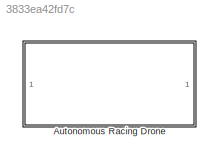
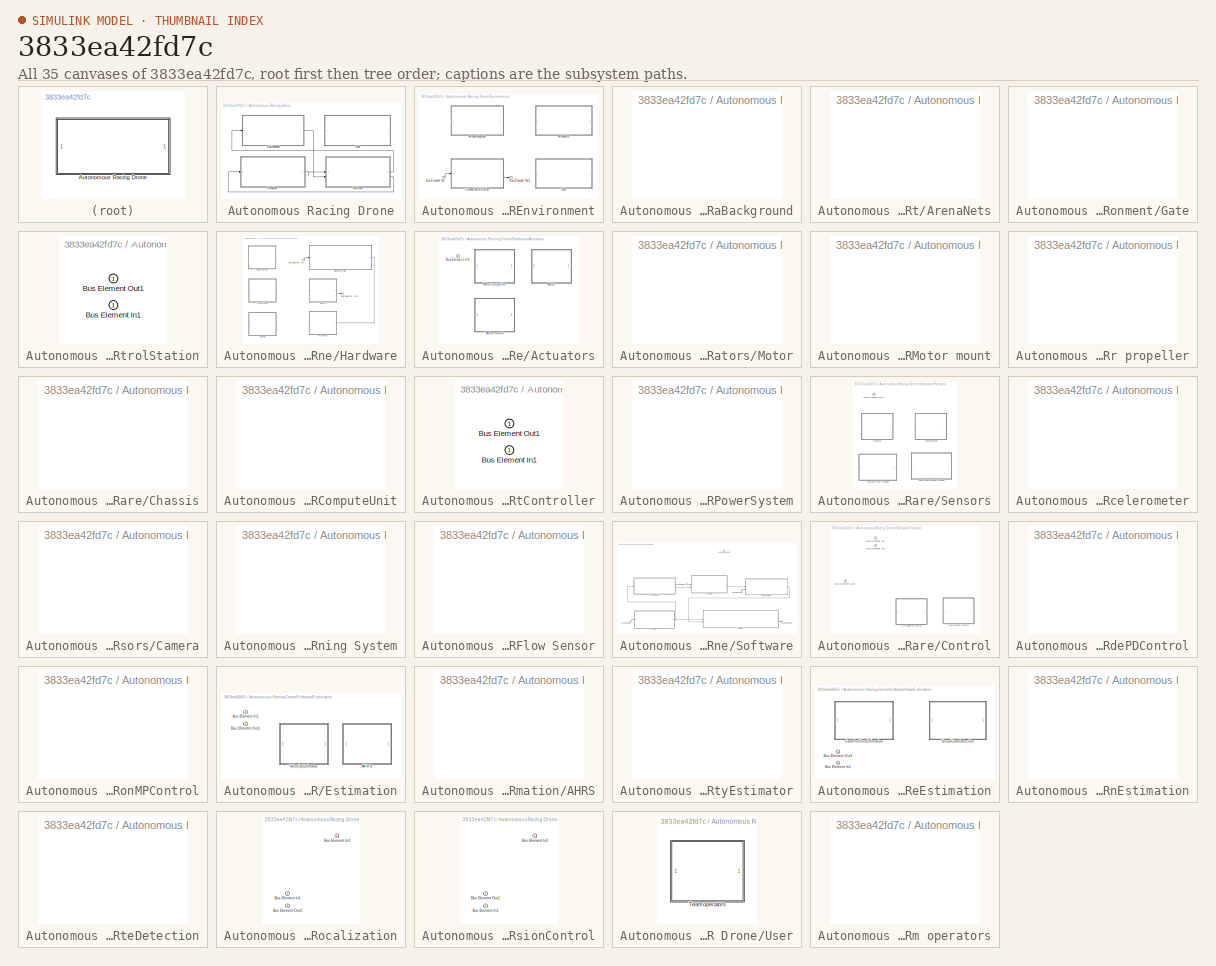
[diagram: thumbnail index - all 35 canvases of the model, root first then tree order]
MODEL slx_3833ea42fd7c
KIND model
CONFIG AbsTol = auto
CONFIG EnableMultiTasking = off
CONFIG FixedStep = auto
CONFIG MaxStep = auto
CONFIG MinStep = auto
CONFIG RelTol = 1e-3
CONFIG SampleTimeConstraint = Unconstrained
CONFIG SolverName = FixedStepDiscrete
CONFIG StartTime = 0.0
CONFIG StopTime = 10.0
BLOCK [SubSystem] Autonomous Racing Drone
  PortSchema = {"entries":[{"content":{"headerSize":26,"margin":15,"minimumSpacing":25,"sides":[{"content":{"connectorIds":[]},"type":"ConnectorPlacement.EquallySpacedRectSide","uuid":"710bb091-7129-4ee7-a780-76ad6f160d90"},{"content":{"connectorIds":[],"side":"RIGHT"},"type":"ConnectorPlacement.EquallySpacedRectSide","uuid":"a14cb0ec-5ed5-4fd8-9e8a-b2c1d3079cde"},{"content":{"connectorIds":[],"side":"TOP"},"typ...<+277ch>  <repeated x22 — deduplicated; at blocks: Autonomous Racing Drone, ArenaBackground, ArenaNets, Gate, Motor, Motor mount, Motor propeller, Chassis, ComputeUnit, PowerSystem, Acelerometer, Camera, Loco Positioning System, Optical Flow Sensor, AttitudePDControl, PositionMPControl, +6 more>
BLOCK [SubSystem] Autonomous Racing Drone/Environment
  PortSchema = {"entries":[{"content":{"headerSize":26,"margin":15,"minimumSpacing":25,"sides":[{"content":{"connectorIds":["In1"]},"type":"ConnectorPlacement.EquallySpacedRectSide","uuid":"710bb091-7129-4ee7-a780-76ad6f160d90"},{"content":{"connectorIds":["Out1"],"side":"RIGHT"},"type":"ConnectorPlacement.EquallySpacedRectSide","uuid":"a14cb0ec-5ed5-4fd8-9e8a-b2c1d3079cde"},{"content":{"connectorIds":[],"side":...<+288ch>  <repeated x5 — deduplicated; at blocks: Environment, GroundControlStation, Hardware, FlightController, GateEstimation>
BLOCK [SubSystem] Autonomous Racing Drone/Environment/ArenaBackground
BLOCK [SubSystem] Autonomous Racing Drone/Environment/ArenaNets
BLOCK [Inport] Autonomous Racing Drone/Environment/Bus Element In1
BLOCK [Outport] Autonomous Racing Drone/Environment/Bus Element Out1
BLOCK [SubSystem] Autonomous Racing Drone/Environment/Gate
BLOCK [SubSystem] Autonomous Racing Drone/Environment/GroundControlStation
BLOCK [Inport] Autonomous Racing Drone/Environment/GroundControlStation/Bus Element In1
BLOCK [Outport] Autonomous Racing Drone/Environment/GroundControlStation/Bus Element Out1
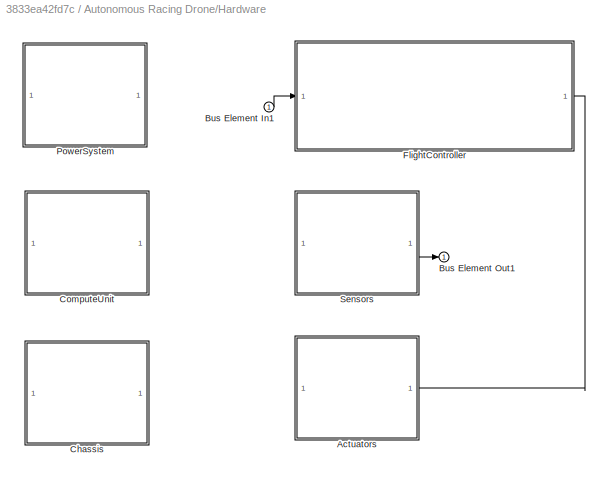
BLOCK [SubSystem] Autonomous Racing Drone/Hardware
BLOCK [SubSystem] Autonomous Racing Drone/Hardware/Actuators
  PortSchema = {"entries":[{"content":{"headerSize":26,"margin":15,"minimumSpacing":25,"sides":[{"content":{"connectorIds":[]},"type":"ConnectorPlacement.EquallySpacedRectSide","uuid":"710bb091-7129-4ee7-a780-76ad6f160d90"},{"content":{"connectorIds":["In1"],"side":"RIGHT"},"type":"ConnectorPlacement.EquallySpacedRectSide","uuid":"a14cb0ec-5ed5-4fd8-9e8a-b2c1d3079cde"},{"content":{"connectorIds":[],"side":"TOP"}...<+282ch>
BLOCK [Inport] Autonomous Racing Drone/Hardware/Actuators/Bus Element In1
BLOCK [SubSystem] Autonomous Racing Drone/Hardware/Actuators/Motor
BLOCK [SubSystem] Autonomous Racing Drone/Hardware/Actuators/Motor mount
BLOCK [SubSystem] Autonomous Racing Drone/Hardware/Actuators/Motor propeller
BLOCK [Inport] Autonomous Racing Drone/Hardware/Bus Element In1
BLOCK [Outport] Autonomous Racing Drone/Hardware/Bus Element Out1
BLOCK [SubSystem] Autonomous Racing Drone/Hardware/Chassis
BLOCK [SubSystem] Autonomous Racing Drone/Hardware/ComputeUnit
BLOCK [SubSystem] Autonomous Racing Drone/Hardware/FlightController
BLOCK [Inport] Autonomous Racing Drone/Hardware/FlightController/Bus Element In1
BLOCK [Outport] Autonomous Racing Drone/Hardware/FlightController/Bus Element Out1
BLOCK [SubSystem] Autonomous Racing Drone/Hardware/PowerSystem
BLOCK [SubSystem] Autonomous Racing Drone/Hardware/Sensors
  PortSchema = {"entries":[{"content":{"headerSize":26,"margin":15,"minimumSpacing":25,"sides":[{"content":{"connectorIds":[]},"type":"ConnectorPlacement.EquallySpacedRectSide","uuid":"710bb091-7129-4ee7-a780-76ad6f160d90"},{"content":{"connectorIds":["Out1"],"side":"RIGHT"},"type":"ConnectorPlacement.EquallySpacedRectSide","uuid":"a14cb0ec-5ed5-4fd8-9e8a-b2c1d3079cde"},{"content":{"connectorIds":[],"side":"TOP"...<+283ch>
BLOCK [SubSystem] Autonomous Racing Drone/Hardware/Sensors/Acelerometer
BLOCK [Outport] Autonomous Racing Drone/Hardware/Sensors/Bus Element Out1
BLOCK [SubSystem] Autonomous Racing Drone/Hardware/Sensors/Camera
BLOCK [SubSystem] Autonomous Racing Drone/Hardware/Sensors/Loco Positioning System
BLOCK [SubSystem] Autonomous Racing Drone/Hardware/Sensors/Optical Flow Sensor
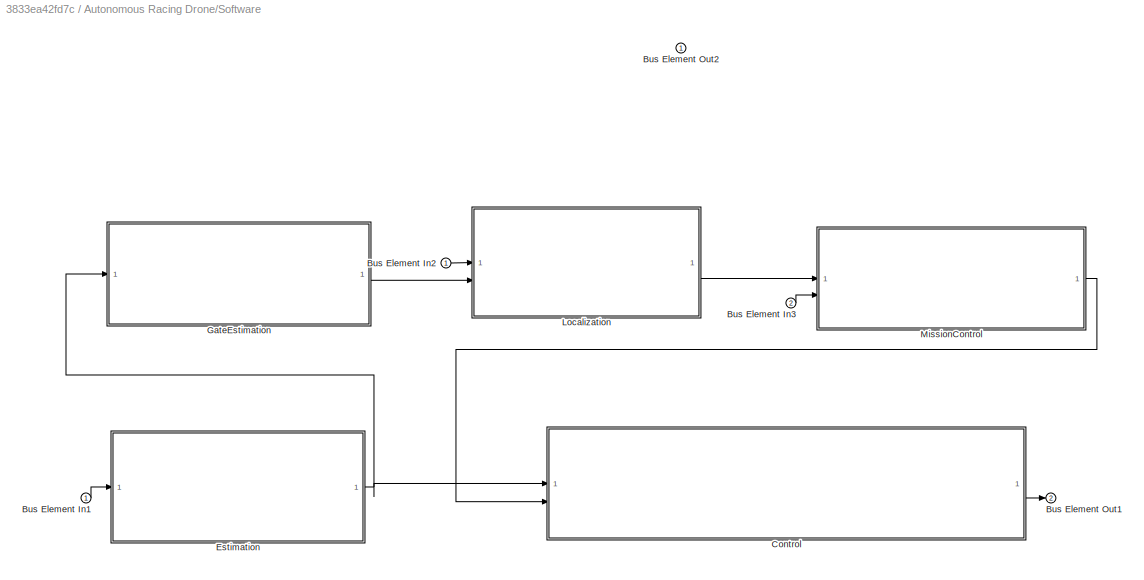
BLOCK [SubSystem] Autonomous Racing Drone/Software
  PortSchema = {"entries":[{"content":{"headerSize":26,"margin":15,"minimumSpacing":25,"sides":[{"content":{"connectorIds":["In2","In1"]},"type":"ConnectorPlacement.EquallySpacedRectSide","uuid":"710bb091-7129-4ee7-a780-76ad6f160d90"},{"content":{"connectorIds":["Out1","Out2"],"side":"RIGHT"},"type":"ConnectorPlacement.EquallySpacedRectSide","uuid":"a14cb0ec-5ed5-4fd8-9e8a-b2c1d3079cde"},{"content":{"connectorId...<+301ch>
BLOCK [Inport] Autonomous Racing Drone/Software/Bus Element In1
BLOCK [Inport] Autonomous Racing Drone/Software/Bus Element In2
BLOCK [Inport] Autonomous Racing Drone/Software/Bus Element In3
  Port = 2
BLOCK [Outport] Autonomous Racing Drone/Software/Bus Element Out1
  Port = 2
BLOCK [Outport] Autonomous Racing Drone/Software/Bus Element Out2
BLOCK [SubSystem] Autonomous Racing Drone/Software/Control
  PortSchema = {"entries":[{"content":{"headerSize":26,"margin":15,"minimumSpacing":25,"sides":[{"content":{"connectorIds":["In2","In1"]},"type":"ConnectorPlacement.EquallySpacedRectSide","uuid":"710bb091-7129-4ee7-a780-76ad6f160d90"},{"content":{"connectorIds":["Out1"],"side":"RIGHT"},"type":"ConnectorPlacement.EquallySpacedRectSide","uuid":"a14cb0ec-5ed5-4fd8-9e8a-b2c1d3079cde"},{"content":{"connectorIds":[],"...<+294ch>
BLOCK [SubSystem] Autonomous Racing Drone/Software/Control/AttitudePDControl
BLOCK [Inport] Autonomous Racing Drone/Software/Control/Bus Element In2
  Port = 2
BLOCK [Inport] Autonomous Racing Drone/Software/Control/Bus Element In3
BLOCK [Outport] Autonomous Racing Drone/Software/Control/Bus Element Out1
BLOCK [SubSystem] Autonomous Racing Drone/Software/Control/PositionMPControl
BLOCK [SubSystem] Autonomous Racing Drone/Software/Estimation
  PortSchema = {"entries":[{"content":{"headerSize":26,"margin":15,"minimumSpacing":25,"sides":[{"content":{"connectorIds":["In1"]},"type":"ConnectorPlacement.EquallySpacedRectSide","uuid":"710bb091-7129-4ee7-a780-76ad6f160d90"},{"content":{"connectorIds":["Out1"],"side":"RIGHT"},"type":"ConnectorPlacement.EquallySpacedRectSide","uuid":"a14cb0ec-5ed5-4fd8-9e8a-b2c1d3079cde"},{"content":{"connectorIds":[],"side":...<+432ch>
BLOCK [SubSystem] Autonomous Racing Drone/Software/Estimation/AHRS
BLOCK [Inport] Autonomous Racing Drone/Software/Estimation/Bus Element In1
BLOCK [Outport] Autonomous Racing Drone/Software/Estimation/Bus Element Out1
BLOCK [SubSystem] Autonomous Racing Drone/Software/Estimation/VelocityEstimator
BLOCK [SubSystem] Autonomous Racing Drone/Software/GateEstimation
BLOCK [Inport] Autonomous Racing Drone/Software/GateEstimation/Bus Element In1
BLOCK [Outport] Autonomous Racing Drone/Software/GateEstimation/Bus Element Out1
BLOCK [SubSystem] Autonomous Racing Drone/Software/GateEstimation/GatePositionEstimation
BLOCK [SubSystem] Autonomous Racing Drone/Software/GateEstimation/VisualGateDetection
BLOCK [SubSystem] Autonomous Racing Drone/Software/Localization
  PortSchema = {"entries":[{"content":{"headerSize":26,"margin":15,"minimumSpacing":25,"sides":[{"content":{"connectorIds":["In1","In2"]},"type":"ConnectorPlacement.EquallySpacedRectSide","uuid":"710bb091-7129-4ee7-a780-76ad6f160d90"},{"content":{"connectorIds":["Out1"],"side":"RIGHT"},"type":"ConnectorPlacement.EquallySpacedRectSide","uuid":"a14cb0ec-5ed5-4fd8-9e8a-b2c1d3079cde"},{"content":{"connectorIds":[],"...<+294ch>
BLOCK [Inport] Autonomous Racing Drone/Software/Localization/Bus Element In1
  Port = 2
BLOCK [Inport] Autonomous Racing Drone/Software/Localization/Bus Element In2
BLOCK [Outport] Autonomous Racing Drone/Software/Localization/Bus Element Out1
BLOCK [SubSystem] Autonomous Racing Drone/Software/MissionControl
  PortSchema = {"entries":[{"content":{"headerSize":26,"margin":15,"minimumSpacing":25,"sides":[{"content":{"connectorIds":["In1","In2"]},"type":"ConnectorPlacement.EquallySpacedRectSide","uuid":"710bb091-7129-4ee7-a780-76ad6f160d90"},{"content":{"connectorIds":["Out1"],"side":"RIGHT"},"type":"ConnectorPlacement.EquallySpacedRectSide","uuid":"a14cb0ec-5ed5-4fd8-9e8a-b2c1d3079cde"},{"content":{"connectorIds":[],"...<+294ch>
BLOCK [Inport] Autonomous Racing Drone/Software/MissionControl/Bus Element In1
  Port = 2
BLOCK [Inport] Autonomous Racing Drone/Software/MissionControl/Bus Element In2
BLOCK [Outport] Autonomous Racing Drone/Software/MissionControl/Bus Element Out1
BLOCK [SubSystem] Autonomous Racing Drone/User
BLOCK [SubSystem] Autonomous Racing Drone/User/Team operators
LINE Autonomous Racing Drone/Environment/Bus Element In1:1 -> Autonomous Racing Drone/Environment/GroundControlStation:1
LINE Autonomous Racing Drone/Environment/GroundControlStation:1 -> Autonomous Racing Drone/Environment/Bus Element Out1:1
LINE Autonomous Racing Drone/Environment:1 -> Autonomous Racing Drone/Software:2
LINE Autonomous Racing Drone/Hardware/Bus Element In1:1 -> Autonomous Racing Drone/Hardware/FlightController:1
LINE Autonomous Racing Drone/Hardware/FlightController:1 -> Autonomous Racing Drone/Hardware/Actuators:1
LINE Autonomous Racing Drone/Hardware/Sensors:1 -> Autonomous Racing Drone/Hardware/Bus Element Out1:1
LINE Autonomous Racing Drone/Hardware:1 -> Autonomous Racing Drone/Software:1
LINE Autonomous Racing Drone/Software/Bus Element In1:1 -> Autonomous Racing Drone/Software/Estimation:1
LINE Autonomous Racing Drone/Software/Bus Element In2:1 -> Autonomous Racing Drone/Software/Localization:1
LINE Autonomous Racing Drone/Software/Bus Element In3:1 -> Autonomous Racing Drone/Software/MissionControl:2
LINE Autonomous Racing Drone/Software/Control:1 -> Autonomous Racing Drone/Software/Bus Element Out1:1
NET Autonomous Racing Drone/Software/Estimation:1 -> Autonomous Racing Drone/Software/Control:1, Autonomous Racing Drone/Software/GateEstimation:1
LINE Autonomous Racing Drone/Software/GateEstimation:1 -> Autonomous Racing Drone/Software/Localization:2
LINE Autonomous Racing Drone/Software/Localization:1 -> Autonomous Racing Drone/Software/MissionControl:1
LINE Autonomous Racing Drone/Software/MissionControl:1 -> Autonomous Racing Drone/Software/Control:2
LINE Autonomous Racing Drone/Software:1 -> Autonomous Racing Drone/Environment:1
LINE Autonomous Racing Drone/Software:2 -> Autonomous Racing Drone/Hardware:1
note: NET lines group one-source signal fan-out (src -> all destinations, sorted); 1:1 wires keep LINE
